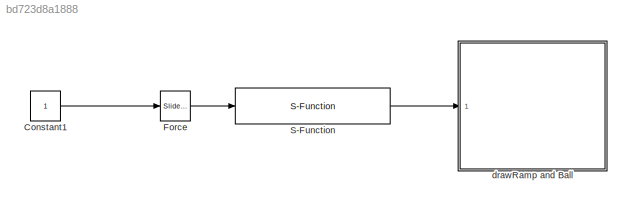
MODEL slx_bd723d8a1888
KIND model
CONFIG AbsTol = auto
CONFIG FixedStep = auto
CONFIG MaxStep = auto
CONFIG MinStep = auto
CONFIG RelTol = 1e-3
CONFIG SampleTimeConstraint = Unconstrained
CONFIG Solver = ode45
CONFIG SolverMode = Auto
CONFIG SolverName = ode45
CONFIG StartTime = 0.0
CONFIG StopTime = inf
BLOCK [Constant] Constant1
BLOCK [Reference] Force  REF=simulink/Math
Operations/Slider
Gain
  Ports = [1, 1]
  SourceBlock = simulink/Math\nOperations/Slider\nGain
  SourceType = Slider Gain
  gain = 11.515
  high = 20
  low = 0
BLOCK [S-Function] S-Function
  FunctionName = ball_ramp_dynamics
  Parameters = ramp_ball_params
  Ports = [1, 1]
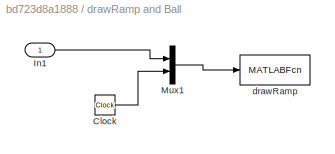
BLOCK [SubSystem] drawRamp and Ball
  Ports = [1]
  RequestExecContextInheritance = off
BLOCK [Clock] drawRamp and Ball/Clock
BLOCK [Inport] drawRamp and Ball/In1
  IconDisplay = Port number
BLOCK [Mux] drawRamp and Ball/Mux1
  DisplayOption = bar
  Inputs = 2
  Ports = [2, 1]
BLOCK [MATLABFcn] drawRamp and Ball/drawRamp
  MATLABFcn = drawRamp(u)
  OutputDimensions = 0
  Ports = [1]
LINE Constant1:1 -> Force:1
LINE Force:1 -> S-Function:1
LINE S-Function:1 -> drawRamp and Ball:1
LINE drawRamp and Ball/Clock:1 -> drawRamp and Ball/Mux1:2
LINE drawRamp and Ball/In1:1 -> drawRamp and Ball/Mux1:1
LINE drawRamp and Ball/Mux1:1 -> drawRamp and Ball/drawRamp:1
